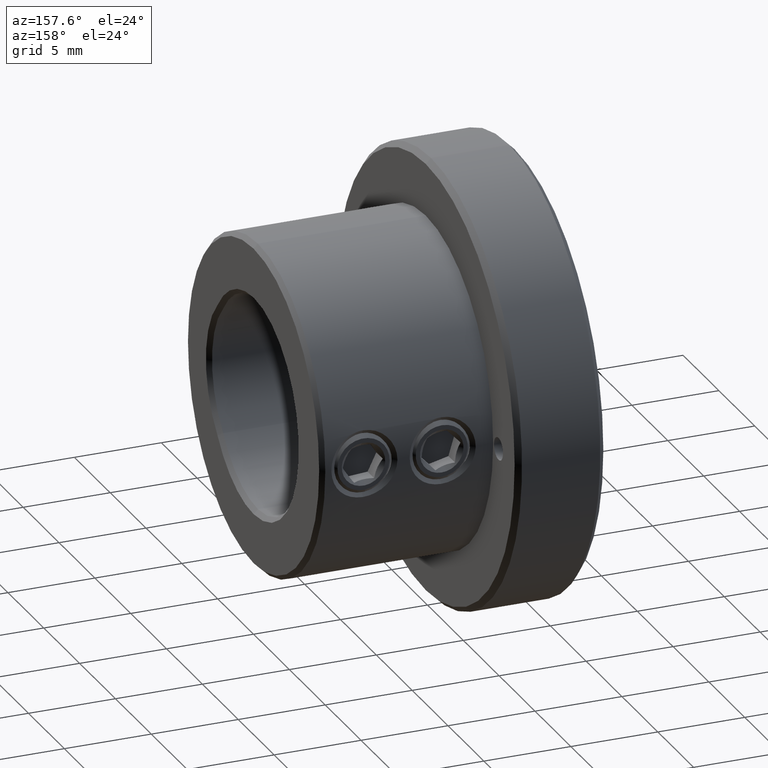
[diagram: clean part render]
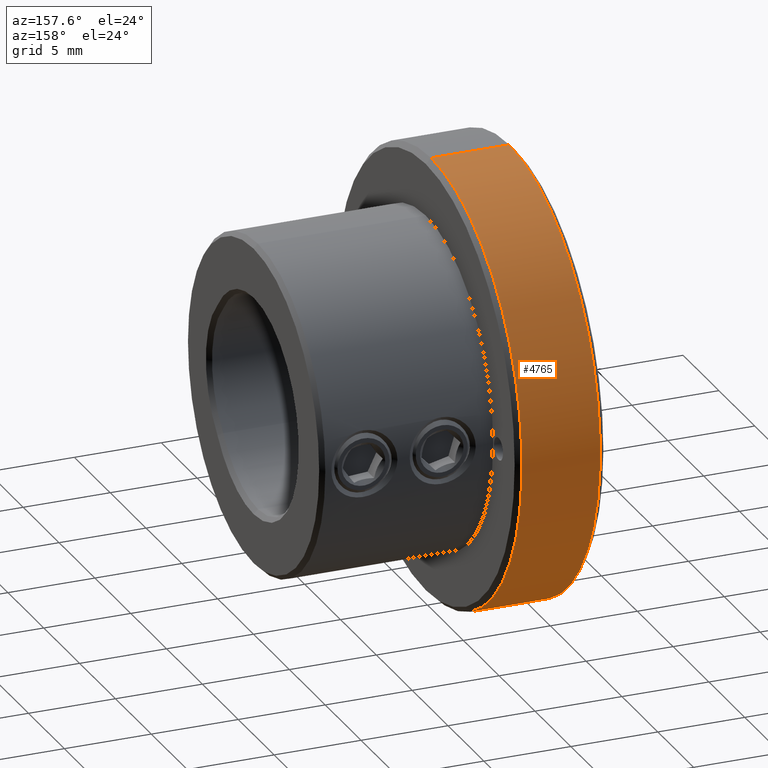
[diagram: same view with one face highlighted and labeled with its STEP entity id]
A machine part, auxiliary view. The second image highlights one B-rep face of the part: STEP entity #4765.
In plain terms, the highlighted cylindrical surface (partial cylindrical patch) has radius 12.7 mm, axis along (-1, -0, -0).
Its self-contained STEP definition (entity closure, byte-faithful):
#136 = AXIS2_PLACEMENT_3D ( 'NONE', #526, #965, #4453 ) ;
#175 = ORIENTED_EDGE ( 'NONE', *, *, #4841, .T. ) ;
#355 = CARTESIAN_POINT ( 'NONE',  ( 0.2999999999999964362, 0.000000000000000000, 0.000000000000000000 ) ) ;
#377 = ORIENTED_EDGE ( 'NONE', *, *, #2160, .F. ) ;
#438 = EDGE_CURVE ( 'NONE', #2402, #1963, #3160, .T. ) ;
#526 = CARTESIAN_POINT ( 'NONE',  ( 4.800000000000002487, 0.000000000000000000, 0.000000000000000000 ) ) ;
#745 = CYLINDRICAL_SURFACE ( 'NONE', #1036, 12.69999999999999929 ) ;
#888 = CARTESIAN_POINT ( 'NONE',  ( 4.800000000000002487, 0.000000000000000000, 12.69999999999999929 ) ) ;
#965 = DIRECTION ( 'NONE',  ( -1.000000000000000000, 0.000000000000000000, 0.000000000000000000 ) ) ;
#1036 = AXIS2_PLACEMENT_3D ( 'NONE', #3468, #4342, #4295 ) ;
#1106 = DIRECTION ( 'NONE',  ( -1.000000000000000000, -0.000000000000000000, -0.000000000000000000 ) ) ;
#1129 = DIRECTION ( 'NONE',  ( 1.000000000000000000, -0.000000000000000000, -0.000000000000000000 ) ) ;
#1189 = DIRECTION ( 'NONE',  ( -1.000000000000000000, -0.000000000000000000, -0.000000000000000000 ) ) ;
#1450 = VECTOR ( 'NONE', #1189, 1000.000000000000000 ) ;
#1677 = CARTESIAN_POINT ( 'NONE',  ( 0.2999999999999964362, 0.000000000000000000, 12.69999999999999929 ) ) ;
#1710 = VERTEX_POINT ( 'NONE', #1677 ) ;
#1896 = ORIENTED_EDGE ( 'NONE', *, *, #3085, .T. ) ;
#1912 = VECTOR ( 'NONE', #1106, 1000.000000000000000 ) ;
#1960 = CARTESIAN_POINT ( 'NONE',  ( 0.2999999999999964362, 1.555301434917138433E-15, -12.69999999999999929 ) ) ;
#1963 = VERTEX_POINT ( 'NONE', #2331 ) ;
#2160 = EDGE_CURVE ( 'NONE', #2402, #1710, #3774, .T. ) ;
#2265 = ORIENTED_EDGE ( 'NONE', *, *, #438, .T. ) ;
#2331 = CARTESIAN_POINT ( 'NONE',  ( 4.800000000000002487, 1.555301434917138433E-15, -12.69999999999999929 ) ) ;
#2402 = VERTEX_POINT ( 'NONE', #888 ) ;
#2452 = AXIS2_PLACEMENT_3D ( 'NONE', #355, #1129, #4178 ) ;
#2787 = CIRCLE ( 'NONE', #2452, 12.69999999999999929 ) ;
#3085 = EDGE_CURVE ( 'NONE', #3544, #1710, #2787, .T. ) ;
#3135 = EDGE_LOOP ( 'NONE', ( #2265, #175, #1896, #377 ) ) ;
#3160 = CIRCLE ( 'NONE', #136, 12.69999999999999929 ) ;
#3468 = CARTESIAN_POINT ( 'NONE',  ( 15.00000000000000000, 0.000000000000000000, 0.000000000000000000 ) ) ;
#3544 = VERTEX_POINT ( 'NONE', #1960 ) ;
#3774 = LINE ( 'NONE', #4518, #1912 ) ;
#3909 = FACE_OUTER_BOUND ( 'NONE', #3135, .T. ) ;
#3951 = LINE ( 'NONE', #4655, #1450 ) ;
#4178 = DIRECTION ( 'NONE',  ( 0.000000000000000000, 0.000000000000000000, -1.000000000000000000 ) ) ;
#4295 = DIRECTION ( 'NONE',  ( 0.000000000000000000, 0.000000000000000000, 1.000000000000000000 ) ) ;
#4342 = DIRECTION ( 'NONE',  ( -1.000000000000000000, -0.000000000000000000, -0.000000000000000000 ) ) ;
#4453 = DIRECTION ( 'NONE',  ( 0.000000000000000000, 0.000000000000000000, -1.000000000000000000 ) ) ;
#4518 = CARTESIAN_POINT ( 'NONE',  ( 15.00000000000000000, 0.000000000000000000, 12.69999999999999929 ) ) ;
#4655 = CARTESIAN_POINT ( 'NONE',  ( 15.00000000000000000, 1.555301434917138433E-15, -12.69999999999999929 ) ) ;
#4765 = ADVANCED_FACE ( 'NONE', ( #3909 ), #745, .T. ) ;
#4841 = EDGE_CURVE ( 'NONE', #1963, #3544, #3951, .T. ) ;